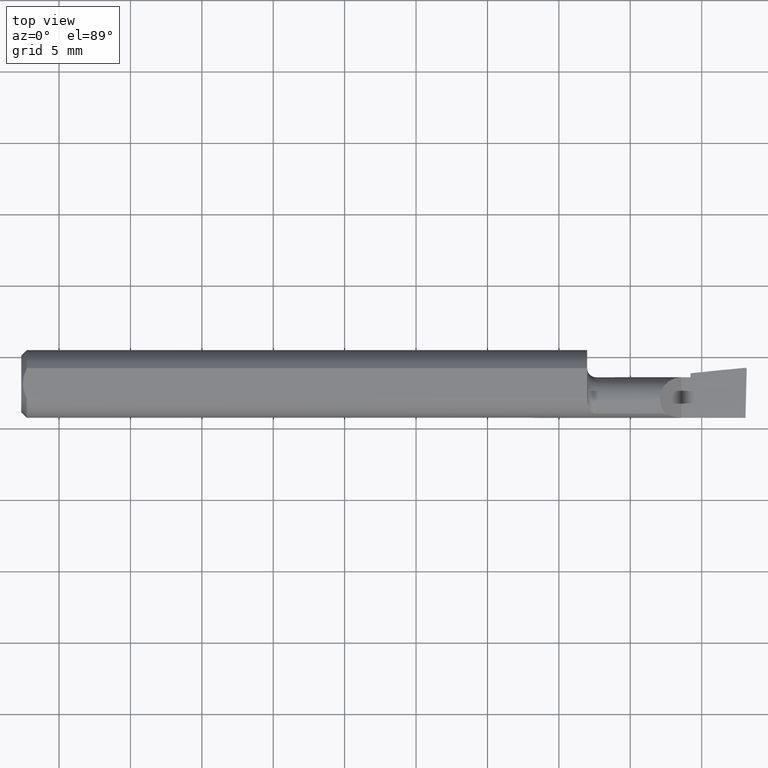
[diagram: clean part render]
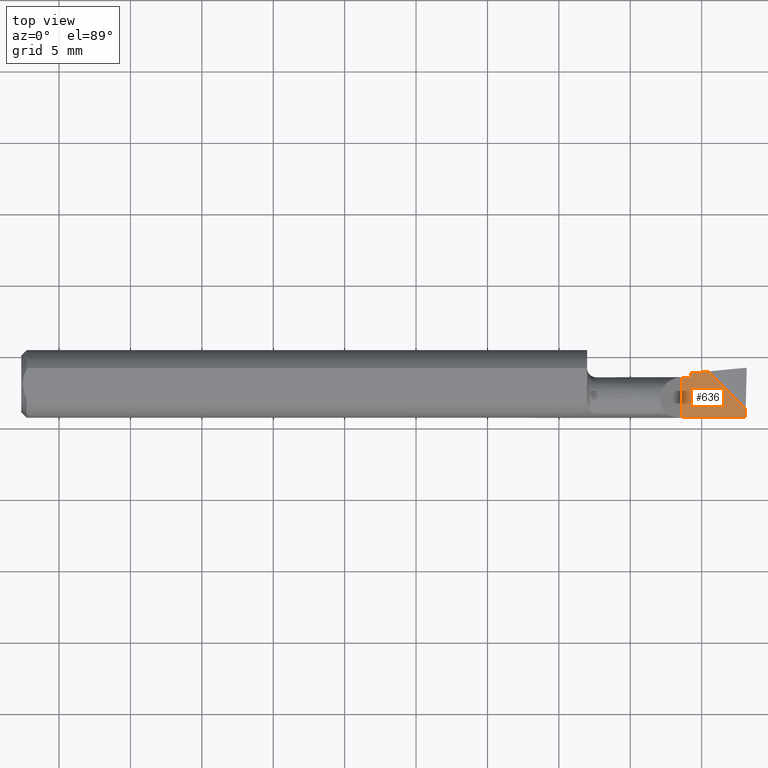
[diagram: same view with one face highlighted and labeled with its STEP entity id]
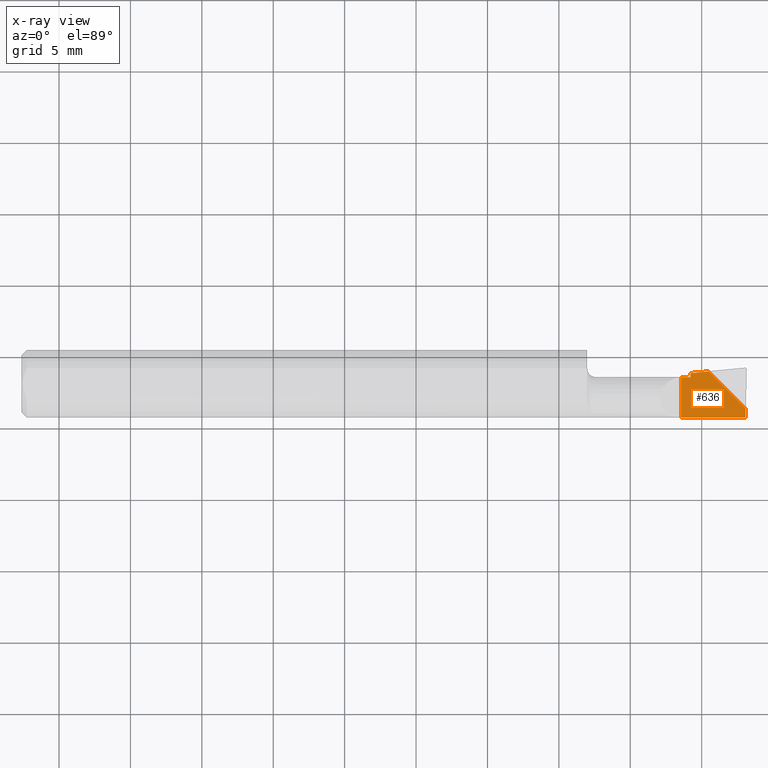
[diagram: x-ray of the same camera — body ghosted, the highlighted face saturated]
A machine part, top view. The second image highlights one B-rep face of the part: STEP entity #636.
The next image is the same camera in x-ray: the body ghosted, the highlighted face saturated — about 0% of this face is hidden behind the body in this view.
In plain terms, the highlighted planar face has unit normal (0, 0, -1).
Its self-contained STEP definition (entity closure, byte-faithful):
#3 = VECTOR ( 'NONE', #1029, 39.37007874015748143 ) ;
#19 = VERTEX_POINT ( 'NONE', #637 ) ;
#21 = VERTEX_POINT ( 'NONE', #445 ) ;
#22 = CARTESIAN_POINT ( 'NONE',  ( 1.820000000000000062, 0.1250000000000000000, -2.561107494060246767E-17 ) ) ;
#24 = VECTOR ( 'NONE', #315, 39.37007874015748143 ) ;
#50 = CARTESIAN_POINT ( 'NONE',  ( 1.820000000000000062, 0.1250000000000000000, -2.561107494060246767E-17 ) ) ;
#80 = DIRECTION ( 'NONE',  ( 0.7071067811865512365, -0.7071067811865436870, -0.000000000000000000 ) ) ;
#141 = PLANE ( 'NONE',  #1074 ) ;
#174 = EDGE_CURVE ( 'NONE', #19, #547, #1077, .T. ) ;
#232 = ORIENTED_EDGE ( 'NONE', *, *, #1020, .F. ) ;
#235 = DIRECTION ( 'NONE',  ( 0.02637339639455558299, 0.9996521614854917415, 0.000000000000000000 ) ) ;
#241 = VERTEX_POINT ( 'NONE', #419 ) ;
#283 = EDGE_CURVE ( 'NONE', #21, #632, #613, .T. ) ;
#315 = DIRECTION ( 'NONE',  ( -1.000000000000000000, -0.000000000000000000, -0.000000000000000000 ) ) ;
#327 = EDGE_CURVE ( 'NONE', #19, #632, #524, .T. ) ;
#394 = ORIENTED_EDGE ( 'NONE', *, *, #492, .F. ) ;
#405 = EDGE_CURVE ( 'NONE', #643, #606, #651, .T. ) ;
#419 = CARTESIAN_POINT ( 'NONE',  ( 1.845000000000000195, 0.01839999999999999969, -2.561107494060246767E-17 ) ) ;
#445 = CARTESIAN_POINT ( 'NONE',  ( 1.996359204888788375, -0.09360000000000003040, -1.280553747030123384E-17 ) ) ;
#490 = CARTESIAN_POINT ( 'NONE',  ( 1.820000000000000062, 0.01839999999999999969, -2.561107494060246767E-17 ) ) ;
#492 = EDGE_CURVE ( 'NONE', #606, #241, #1128, .T. ) ;
#499 = DIRECTION ( 'NONE',  ( -0.000000000000000000, 0.000000000000000000, -1.000000000000000000 ) ) ;
#524 = LINE ( 'NONE', #817, #1107 ) ;
#547 = VERTEX_POINT ( 'NONE', #790 ) ;
#567 = VECTOR ( 'NONE', #235, 39.37007874015748143 ) ;
#603 = CARTESIAN_POINT ( 'NONE',  ( 1.829343156003384818, 0.02796761492317000053, -2.561107494060246767E-17 ) ) ;
#606 = VERTEX_POINT ( 'NONE', #490 ) ;
#613 = LINE ( 'NONE', #886, #567 ) ;
#622 = EDGE_CURVE ( 'NONE', #21, #643, #1140, .T. ) ;
#624 = CARTESIAN_POINT ( 'NONE',  ( 1.845000000000000195, 0.1250000000000000000, -2.561107494060246767E-17 ) ) ;
#625 = VECTOR ( 'NONE', #932, 39.37007874015748143 ) ;
#632 = VERTEX_POINT ( 'NONE', #680 ) ;
#636 = ADVANCED_FACE ( 'NONE', ( #1051 ), #141, .F. ) ;
#637 = CARTESIAN_POINT ( 'NONE',  ( 1.894999999999999796, 0.03428964993925831539, 0.000000000000000000 ) ) ;
#643 = VERTEX_POINT ( 'NONE', #929 ) ;
#651 = LINE ( 'NONE', #22, #3 ) ;
#680 = CARTESIAN_POINT ( 'NONE',  ( 1.997041154708133925, -0.06775150476887450979, 0.000000000000000000 ) ) ;
#706 = LINE ( 'NONE', #624, #832 ) ;
#721 = VECTOR ( 'NONE', #889, 39.37007874015748143 ) ;
#737 = EDGE_LOOP ( 'NONE', ( #1170, #1035, #775, #232, #394, #870, #896 ) ) ;
#769 = CARTESIAN_POINT ( 'NONE',  ( 1.560000000000000053, 0.01839999999999999969, -2.561107494060246767E-17 ) ) ;
#775 = ORIENTED_EDGE ( 'NONE', *, *, #174, .T. ) ;
#777 = CARTESIAN_POINT ( 'NONE',  ( 2.000000000000000000, -0.09360000000000001652, -2.561107494060246767E-17 ) ) ;
#784 = DIRECTION ( 'NONE',  ( -1.000000000000000000, 0.000000000000000000, 0.000000000000000000 ) ) ;
#790 = CARTESIAN_POINT ( 'NONE',  ( 1.845000000000000195, 0.02947519752938140489, -2.561107494060246767E-17 ) ) ;
#817 = CARTESIAN_POINT ( 'NONE',  ( 2.000000000000000000, -0.07071035006074065377, 0.000000000000000000 ) ) ;
#832 = VECTOR ( 'NONE', #1080, 39.37007874015748143 ) ;
#870 = ORIENTED_EDGE ( 'NONE', *, *, #405, .F. ) ;
#886 = CARTESIAN_POINT ( 'NONE',  ( 2.001999756263820096, 0.1201983780953112257, -2.561107494060246767E-17 ) ) ;
#889 = DIRECTION ( 'NONE',  ( -0.9953961983671787417, -0.09584575252022448089, 0.000000000000000000 ) ) ;
#896 = ORIENTED_EDGE ( 'NONE', *, *, #622, .F. ) ;
#929 = CARTESIAN_POINT ( 'NONE',  ( 1.820000000000000062, -0.09360000000000001652, -2.561107494060246767E-17 ) ) ;
#932 = DIRECTION ( 'NONE',  ( 1.000000000000000000, 0.000000000000000000, 0.000000000000000000 ) ) ;
#1020 = EDGE_CURVE ( 'NONE', #241, #547, #706, .T. ) ;
#1029 = DIRECTION ( 'NONE',  ( -0.000000000000000000, 1.000000000000000000, -0.000000000000000000 ) ) ;
#1035 = ORIENTED_EDGE ( 'NONE', *, *, #327, .F. ) ;
#1051 = FACE_OUTER_BOUND ( 'NONE', #737, .T. ) ;
#1074 = AXIS2_PLACEMENT_3D ( 'NONE', #50, #499, #784 ) ;
#1077 = LINE ( 'NONE', #603, #721 ) ;
#1080 = DIRECTION ( 'NONE',  ( 0.000000000000000000, 1.000000000000000000, 0.000000000000000000 ) ) ;
#1107 = VECTOR ( 'NONE', #80, 39.37007874015748854 ) ;
#1128 = LINE ( 'NONE', #769, #625 ) ;
#1140 = LINE ( 'NONE', #777, #24 ) ;
#1170 = ORIENTED_EDGE ( 'NONE', *, *, #283, .T. ) ;